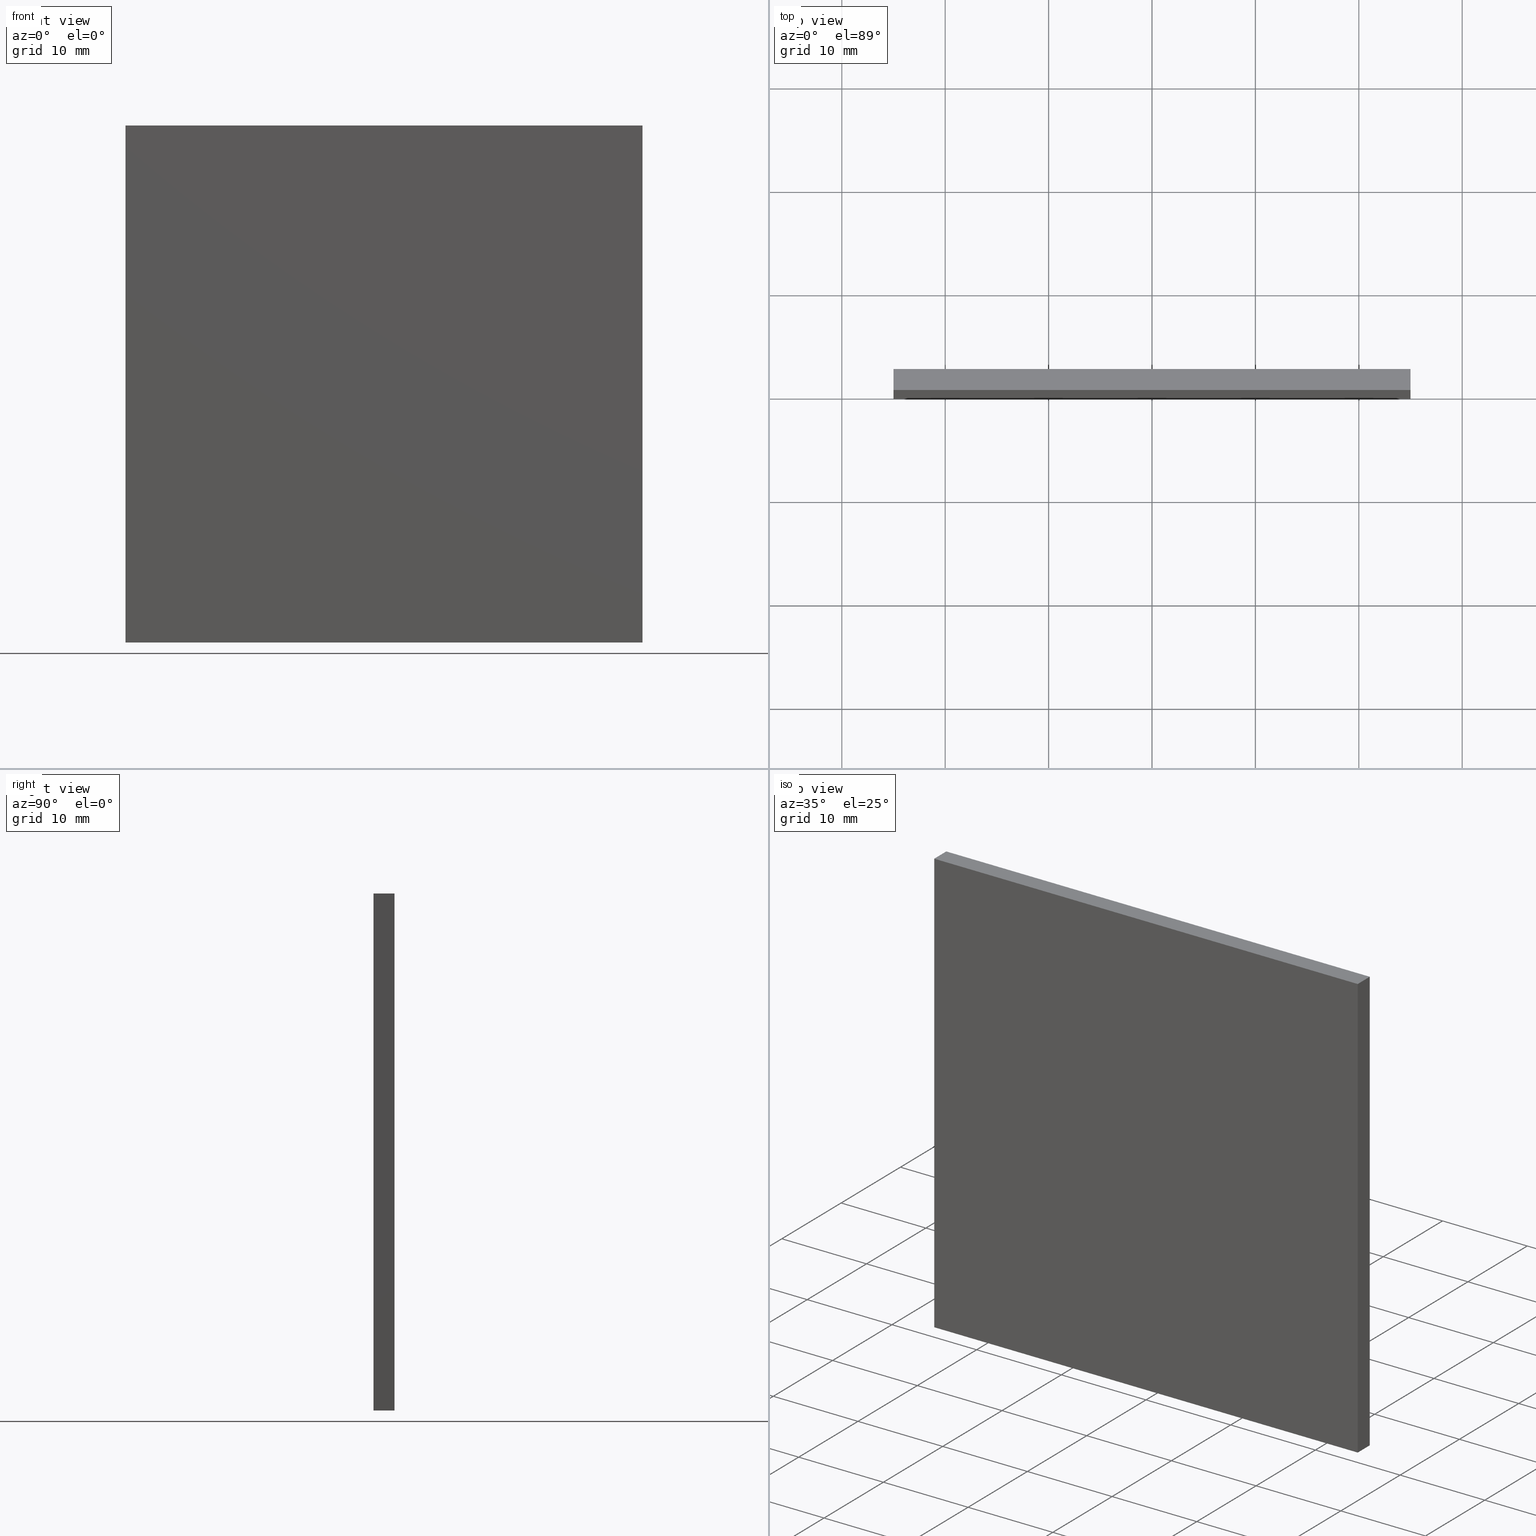
[diagram: canonical four-view strip — front | top / right | iso, engineering-drawing reading convention]
A machine part, canonical four-view strip (front | top / right | iso — engineering-drawing reading convention). The complete STEP part file that produces these views, byte-faithful:
ISO-10303-21;
HEADER;
FILE_DESCRIPTION (( 'STEP AP214' ),
    '1' );
FILE_NAME ('248617.STEP',
    '2019-08-06T06:44:41',
    ( 'user' ),
    ( '΢���й�' ),
    'SwSTEP 2.0',
    'SolidWorks 2016',
    '' );
FILE_SCHEMA (( 'AUTOMOTIVE_DESIGN' ));
ENDSEC;

DATA;
#1 = ORIENTED_EDGE ( 'NONE', *, *, #134, .F. ) ;
#2 = LINE ( 'NONE', #52, #149 ) ;
#3 = VECTOR ( 'NONE', #145, 1000.000000000000000 ) ;
#4 = CARTESIAN_POINT ( 'NONE',  ( 24.99999999999999600, 2.029999999999999800, 25.00000000000000000 ) ) ;
#5 = DIRECTION ( 'NONE',  ( -0.0000000000000000000, -0.0000000000000000000, 1.000000000000000000 ) ) ;
#6 = MECHANICAL_DESIGN_GEOMETRIC_PRESENTATION_REPRESENTATION (  '', ( #13 ), #123 ) ;
#7 = EDGE_LOOP ( 'NONE', ( #41, #33, #110, #196 ) ) ;
#8 = LINE ( 'NONE', #135, #195 ) ;
#9 = AXIS2_PLACEMENT_3D ( 'NONE', #183, #126, #177 ) ;
#10 = EDGE_CURVE ( 'NONE', #57, #164, #79, .T. ) ;
#11 = FACE_OUTER_BOUND ( 'NONE', #64, .T. ) ;
#12 = ORIENTED_EDGE ( 'NONE', *, *, #179, .F. ) ;
#13 = STYLED_ITEM ( 'NONE', ( #124 ), #85 ) ;
#14 = DIRECTION ( 'NONE',  ( -1.000000000000000000, -0.0000000000000000000, -0.0000000000000000000 ) ) ;
#15 = VECTOR ( 'NONE', #14, 1000.000000000000000 ) ;
#16 = CARTESIAN_POINT ( 'NONE',  ( -25.00000000000000400, 0.0000000000000000000, 25.00000000000000000 ) ) ;
#17 = AXIS2_PLACEMENT_3D ( 'NONE', #162, #128, #201 ) ;
#18 = VECTOR ( 'NONE', #73, 1000.000000000000000 ) ;
#19 = CARTESIAN_POINT ( 'NONE',  ( 24.99999999999999600, 2.029999999999999800, 25.00000000000000000 ) ) ;
#20 = AXIS2_PLACEMENT_3D ( 'NONE', #69, #104, #106 ) ;
#21 = ORIENTED_EDGE ( 'NONE', *, *, #179, .T. ) ;
#22 = ADVANCED_FACE ( 'NONE', ( #127 ), #191, .F. ) ;
#23 = ORIENTED_EDGE ( 'NONE', *, *, #10, .F. ) ;
#24 = CARTESIAN_POINT ( 'NONE',  ( -25.00000000000000400, 0.0000000000000000000, 25.00000000000000000 ) ) ;
#25 = UNCERTAINTY_MEASURE_WITH_UNIT (LENGTH_MEASURE( 1.000000000000000100E-005 ), #92, 'distance_accuracy_value', 'NONE');
#26 = PLANE ( 'NONE',  #17 ) ;
#27 = ORIENTED_EDGE ( 'NONE', *, *, #150, .F. ) ;
#28 = PLANE ( 'NONE',  #40 ) ;
#29 = ORIENTED_EDGE ( 'NONE', *, *, #61, .F. ) ;
#30 = EDGE_CURVE ( 'NONE', #200, #146, #111, .T. ) ;
#31 = PLANE ( 'NONE',  #112 ) ;
#32 = VECTOR ( 'NONE', #154, 1000.000000000000000 ) ;
#33 = ORIENTED_EDGE ( 'NONE', *, *, #163, .T. ) ;
#34 = APPLICATION_CONTEXT ( 'automotive_design' ) ;
#35 = LINE ( 'NONE', #161, #83 ) ;
#36 = SURFACE_STYLE_USAGE ( .BOTH. , #103 ) ;
#37 =( LENGTH_UNIT ( ) NAMED_UNIT ( * ) SI_UNIT ( .MILLI., .METRE. ) );
#38 = DIRECTION ( 'NONE',  ( 0.0000000000000000000, 0.0000000000000000000, 1.000000000000000000 ) ) ;
#39 = MECHANICAL_DESIGN_GEOMETRIC_PRESENTATION_REPRESENTATION (  '', ( #139 ), #184 ) ;
#40 = AXIS2_PLACEMENT_3D ( 'NONE', #50, #90, #157 ) ;
#41 = ORIENTED_EDGE ( 'NONE', *, *, #186, .T. ) ;
#42 = SHAPE_DEFINITION_REPRESENTATION ( #180, #85 ) ;
#43 = VECTOR ( 'NONE', #144, 1000.000000000000000 ) ;
#44 = UNCERTAINTY_MEASURE_WITH_UNIT (LENGTH_MEASURE( 1.000000000000000100E-005 ), #188, 'distance_accuracy_value', 'NONE');
#45 = ORIENTED_EDGE ( 'NONE', *, *, #165, .F. ) ;
#46 = EDGE_CURVE ( 'NONE', #146, #194, #63, .T. ) ;
#47 = PRODUCT ( '248617', '248617', '', ( #113 ) ) ;
#48 = DIRECTION ( 'NONE',  ( 1.000000000000000000, 0.0000000000000000000, -0.0000000000000000000 ) ) ;
#49 = ORIENTED_EDGE ( 'NONE', *, *, #10, .T. ) ;
#50 = CARTESIAN_POINT ( 'NONE',  ( 24.99999999999999600, 2.029999999999999800, 25.00000000000000000 ) ) ;
#51 = FACE_OUTER_BOUND ( 'NONE', #95, .T. ) ;
#52 = CARTESIAN_POINT ( 'NONE',  ( -25.00000000000000400, 2.029999999999999800, -25.00000000000000000 ) ) ;
#53 = EDGE_LOOP ( 'NONE', ( #12, #23, #143, #29 ) ) ;
#54 = CARTESIAN_POINT ( 'NONE',  ( -25.00000000000000400, 2.029999999999999800, 25.00000000000000000 ) ) ;
#55 = PRESENTATION_LAYER_ASSIGNMENT (  '', '', ( #13 ) ) ;
#56 = DIRECTION ( 'NONE',  ( -0.0000000000000000000, -0.0000000000000000000, 1.000000000000000000 ) ) ;
#57 = VERTEX_POINT ( 'NONE', #16 ) ;
#58 = ADVANCED_FACE ( 'NONE', ( #159 ), #102, .F. ) ;
#59 = DIRECTION ( 'NONE',  ( -0.0000000000000000000, -1.000000000000000000, -0.0000000000000000000 ) ) ;
#60 = CARTESIAN_POINT ( 'NONE',  ( -25.00000000000000400, 0.0000000000000000000, -25.00000000000000000 ) ) ;
#61 = EDGE_CURVE ( 'NONE', #109, #97, #66, .T. ) ;
#62 = CARTESIAN_POINT ( 'NONE',  ( 0.0000000000000000000, 2.029999999999999800, 0.0000000000000000000 ) ) ;
#63 = LINE ( 'NONE', #54, #43 ) ;
#64 = EDGE_LOOP ( 'NONE', ( #82, #27, #114, #89 ) ) ;
#65 = LINE ( 'NONE', #19, #32 ) ;
#66 = LINE ( 'NONE', #60, #15 ) ;
#67 = CARTESIAN_POINT ( 'NONE',  ( -25.00000000000000400, 2.029999999999999800, 25.00000000000000000 ) ) ;
#68 = FACE_OUTER_BOUND ( 'NONE', #77, .T. ) ;
#69 = CARTESIAN_POINT ( 'NONE',  ( -25.00000000000000400, 2.029999999999999800, 25.00000000000000000 ) ) ;
#70 = DIRECTION ( 'NONE',  ( 0.0000000000000000000, 0.0000000000000000000, -1.000000000000000000 ) ) ;
#71 =( NAMED_UNIT ( * ) SI_UNIT ( $, .STERADIAN. ) SOLID_ANGLE_UNIT ( ) );
#72 = CARTESIAN_POINT ( 'NONE',  ( -25.00000000000000400, 2.029999999999999800, 25.00000000000000000 ) ) ;
#73 = DIRECTION ( 'NONE',  ( -0.0000000000000000000, -1.000000000000000000, -0.0000000000000000000 ) ) ;
#74 = EDGE_LOOP ( 'NONE', ( #49, #193, #120, #190 ) ) ;
#75 = CARTESIAN_POINT ( 'NONE',  ( 24.99999999999999600, 0.0000000000000000000, 25.00000000000000000 ) ) ;
#76 = CLOSED_SHELL ( 'NONE', ( #189, #118, #173, #22, #58, #137 ) ) ;
#77 = EDGE_LOOP ( 'NONE', ( #131, #45, #99, #187 ) ) ;
#78 = AXIS2_PLACEMENT_3D ( 'NONE', #62, #199, #129 ) ;
#79 = LINE ( 'NONE', #24, #136 ) ;
#80 = COLOUR_RGB ( '',1.000000000000000000, 1.000000000000000000, 1.000000000000000000 ) ;
#81 = FILL_AREA_STYLE_COLOUR ( '', #80 ) ;
#82 = ORIENTED_EDGE ( 'NONE', *, *, #61, .T. ) ;
#83 = VECTOR ( 'NONE', #59, 1000.000000000000000 ) ;
#84 = CARTESIAN_POINT ( 'NONE',  ( 24.99999999999999600, 2.029999999999999800, -25.00000000000000000 ) ) ;
#85 = ADVANCED_BREP_SHAPE_REPRESENTATION ( '248617', ( #156, #151 ), #121 ) ;
#86 = CARTESIAN_POINT ( 'NONE',  ( -25.00000000000000400, 2.029999999999999800, -25.00000000000000000 ) ) ;
#87 = CARTESIAN_POINT ( 'NONE',  ( -25.00000000000000400, 0.0000000000000000000, 25.00000000000000000 ) ) ;
#88 = VECTOR ( 'NONE', #125, 1000.000000000000000 ) ;
#89 = ORIENTED_EDGE ( 'NONE', *, *, #134, .T. ) ;
#90 = DIRECTION ( 'NONE',  ( -1.000000000000000000, 0.0000000000000000000, 0.0000000000000000000 ) ) ;
#91 = APPLICATION_PROTOCOL_DEFINITION ( 'draft international standard', 'automotive_design', 1998, #108 ) ;
#92 =( LENGTH_UNIT ( ) NAMED_UNIT ( * ) SI_UNIT ( .MILLI., .METRE. ) );
#93 = EDGE_CURVE ( 'NONE', #97, #57, #101, .T. ) ;
#94 = DIRECTION ( 'NONE',  ( 0.0000000000000000000, 0.0000000000000000000, 1.000000000000000000 ) ) ;
#95 = EDGE_LOOP ( 'NONE', ( #21, #1, #115, #168 ) ) ;
#96 =( NAMED_UNIT ( * ) SI_UNIT ( $, .STERADIAN. ) SOLID_ANGLE_UNIT ( ) );
#97 = VERTEX_POINT ( 'NONE', #202 ) ;
#98 = LINE ( 'NONE', #122, #3 ) ;
#99 = ORIENTED_EDGE ( 'NONE', *, *, #30, .F. ) ;
#100 =( NAMED_UNIT ( * ) PLANE_ANGLE_UNIT ( ) SI_UNIT ( $, .RADIAN. ) );
#101 = LINE ( 'NONE', #87, #148 ) ;
#102 = PLANE ( 'NONE',  #78 ) ;
#103 = SURFACE_SIDE_STYLE ('',( #160 ) ) ;
#104 = DIRECTION ( 'NONE',  ( 1.000000000000000000, -0.0000000000000000000, 0.0000000000000000000 ) ) ;
#105 =( NAMED_UNIT ( * ) PLANE_ANGLE_UNIT ( ) SI_UNIT ( $, .RADIAN. ) );
#106 = DIRECTION ( 'NONE',  ( 0.0000000000000000000, 0.0000000000000000000, -1.000000000000000000 ) ) ;
#107 = CARTESIAN_POINT ( 'NONE',  ( 24.99999999999999600, 2.029999999999999800, -25.00000000000000000 ) ) ;
#108 = APPLICATION_CONTEXT ( 'automotive_design' ) ;
#109 = VERTEX_POINT ( 'NONE', #132 ) ;
#110 = ORIENTED_EDGE ( 'NONE', *, *, #30, .T. ) ;
#111 = LINE ( 'NONE', #67, #153 ) ;
#112 = AXIS2_PLACEMENT_3D ( 'NONE', #178, #94, #48 ) ;
#113 = PRODUCT_CONTEXT ( 'NONE', #34, 'mechanical' ) ;
#114 = ORIENTED_EDGE ( 'NONE', *, *, #163, .F. ) ;
#115 = ORIENTED_EDGE ( 'NONE', *, *, #186, .F. ) ;
#116 = SURFACE_STYLE_USAGE ( .BOTH. , #119 ) ;
#117 = LINE ( 'NONE', #142, #18 ) ;
#118 = ADVANCED_FACE ( 'NONE', ( #11 ), #31, .F. ) ;
#119 = SURFACE_SIDE_STYLE ('',( #155 ) ) ;
#120 = ORIENTED_EDGE ( 'NONE', *, *, #46, .F. ) ;
#121 =( GEOMETRIC_REPRESENTATION_CONTEXT ( 3 ) GLOBAL_UNCERTAINTY_ASSIGNED_CONTEXT ( ( #25 ) ) GLOBAL_UNIT_ASSIGNED_CONTEXT ( ( #92, #100, #96 ) ) REPRESENTATION_CONTEXT ( 'NONE', 'WORKASPACE' ) );
#122 = CARTESIAN_POINT ( 'NONE',  ( 24.99999999999999600, 0.0000000000000000000, 25.00000000000000000 ) ) ;
#123 =( GEOMETRIC_REPRESENTATION_CONTEXT ( 3 ) GLOBAL_UNCERTAINTY_ASSIGNED_CONTEXT ( ( #170 ) ) GLOBAL_UNIT_ASSIGNED_CONTEXT ( ( #37, #105, #71 ) ) REPRESENTATION_CONTEXT ( 'NONE', 'WORKASPACE' ) );
#124 = PRESENTATION_STYLE_ASSIGNMENT (( #36 ) ) ;
#125 = DIRECTION ( 'NONE',  ( -0.0000000000000000000, -1.000000000000000000, -0.0000000000000000000 ) ) ;
#126 = DIRECTION ( 'NONE',  ( 0.0000000000000000000, 0.0000000000000000000, -1.000000000000000000 ) ) ;
#127 = FACE_OUTER_BOUND ( 'NONE', #74, .T. ) ;
#128 = DIRECTION ( 'NONE',  ( 0.0000000000000000000, -1.000000000000000000, 0.0000000000000000000 ) ) ;
#129 = DIRECTION ( 'NONE',  ( 0.0000000000000000000, -0.0000000000000000000, -1.000000000000000000 ) ) ;
#130 = PRESENTATION_STYLE_ASSIGNMENT (( #116 ) ) ;
#131 = ORIENTED_EDGE ( 'NONE', *, *, #93, .T. ) ;
#132 = CARTESIAN_POINT ( 'NONE',  ( 24.99999999999999600, 0.0000000000000000000, -25.00000000000000000 ) ) ;
#133 =( NAMED_UNIT ( * ) SI_UNIT ( $, .STERADIAN. ) SOLID_ANGLE_UNIT ( ) );
#134 = EDGE_CURVE ( 'NONE', #152, #109, #158, .T. ) ;
#135 = CARTESIAN_POINT ( 'NONE',  ( 24.99999999999999600, 2.029999999999999800, 25.00000000000000000 ) ) ;
#136 = VECTOR ( 'NONE', #167, 1000.000000000000000 ) ;
#137 = ADVANCED_FACE ( 'NONE', ( #182 ), #26, .T. ) ;
#138 = COLOUR_RGB ( '',1.000000000000000000, 1.000000000000000000, 1.000000000000000000 ) ;
#139 = STYLED_ITEM ( 'NONE', ( #130 ), #156 ) ;
#140 = PLANE ( 'NONE',  #20 ) ;
#141 = EDGE_CURVE ( 'NONE', #194, #164, #65, .T. ) ;
#142 = CARTESIAN_POINT ( 'NONE',  ( -25.00000000000000400, 2.029999999999999800, -25.00000000000000000 ) ) ;
#143 = ORIENTED_EDGE ( 'NONE', *, *, #93, .F. ) ;
#144 = DIRECTION ( 'NONE',  ( 1.000000000000000000, 0.0000000000000000000, 0.0000000000000000000 ) ) ;
#145 = DIRECTION ( 'NONE',  ( 0.0000000000000000000, 0.0000000000000000000, -1.000000000000000000 ) ) ;
#146 = VERTEX_POINT ( 'NONE', #72 ) ;
#147 = APPLICATION_PROTOCOL_DEFINITION ( 'draft international standard', 'automotive_design', 1998, #34 ) ;
#148 = VECTOR ( 'NONE', #56, 1000.000000000000000 ) ;
#149 = VECTOR ( 'NONE', #192, 1000.000000000000000 ) ;
#150 = EDGE_CURVE ( 'NONE', #200, #97, #117, .T. ) ;
#151 = AXIS2_PLACEMENT_3D ( 'NONE', #169, #38, #176 ) ;
#152 = VERTEX_POINT ( 'NONE', #107 ) ;
#153 = VECTOR ( 'NONE', #5, 1000.000000000000000 ) ;
#154 = DIRECTION ( 'NONE',  ( -0.0000000000000000000, -1.000000000000000000, -0.0000000000000000000 ) ) ;
#155 = SURFACE_STYLE_FILL_AREA ( #171 ) ;
#156 = MANIFOLD_SOLID_BREP ( '͹̨-����1', #76 ) ;
#157 = DIRECTION ( 'NONE',  ( 0.0000000000000000000, 0.0000000000000000000, 1.000000000000000000 ) ) ;
#158 = LINE ( 'NONE', #84, #88 ) ;
#159 = FACE_OUTER_BOUND ( 'NONE', #7, .T. ) ;
#160 = SURFACE_STYLE_FILL_AREA ( #198 ) ;
#161 = CARTESIAN_POINT ( 'NONE',  ( -25.00000000000000400, 2.029999999999999800, 25.00000000000000000 ) ) ;
#162 = CARTESIAN_POINT ( 'NONE',  ( 0.0000000000000000000, 0.0000000000000000000, 0.0000000000000000000 ) ) ;
#163 = EDGE_CURVE ( 'NONE', #152, #200, #2, .T. ) ;
#164 = VERTEX_POINT ( 'NONE', #75 ) ;
#165 = EDGE_CURVE ( 'NONE', #146, #57, #35, .T. ) ;
#166 = PRODUCT_DEFINITION ( 'δ֪', '', #172, #175 ) ;
#167 = DIRECTION ( 'NONE',  ( 1.000000000000000000, 0.0000000000000000000, 0.0000000000000000000 ) ) ;
#168 = ORIENTED_EDGE ( 'NONE', *, *, #141, .T. ) ;
#169 = CARTESIAN_POINT ( 'NONE',  ( 0.0000000000000000000, 0.0000000000000000000, 0.0000000000000000000 ) ) ;
#170 = UNCERTAINTY_MEASURE_WITH_UNIT (LENGTH_MEASURE( 1.000000000000000100E-005 ), #37, 'distance_accuracy_value', 'NONE');
#171 = FILL_AREA_STYLE ('',( #185 ) ) ;
#172 = PRODUCT_DEFINITION_FORMATION_WITH_SPECIFIED_SOURCE ( '�κ�', '', #47, .NOT_KNOWN. ) ;
#173 = ADVANCED_FACE ( 'NONE', ( #68 ), #140, .F. ) ;
#174 =( NAMED_UNIT ( * ) PLANE_ANGLE_UNIT ( ) SI_UNIT ( $, .RADIAN. ) );
#175 = PRODUCT_DEFINITION_CONTEXT ( 'detailed design', #108, 'design' ) ;
#176 = DIRECTION ( 'NONE',  ( 1.000000000000000000, 0.0000000000000000000, 0.0000000000000000000 ) ) ;
#177 = DIRECTION ( 'NONE',  ( -1.000000000000000000, 0.0000000000000000000, -0.0000000000000000000 ) ) ;
#178 = CARTESIAN_POINT ( 'NONE',  ( -25.00000000000000400, 2.029999999999999800, -25.00000000000000000 ) ) ;
#179 = EDGE_CURVE ( 'NONE', #164, #109, #98, .T. ) ;
#180 = PRODUCT_DEFINITION_SHAPE ( 'NONE', 'NONE',  #166 ) ;
#181 = PRODUCT_RELATED_PRODUCT_CATEGORY ( 'part', '', ( #47 ) ) ;
#182 = FACE_OUTER_BOUND ( 'NONE', #53, .T. ) ;
#183 = CARTESIAN_POINT ( 'NONE',  ( -25.00000000000000400, 2.029999999999999800, 25.00000000000000000 ) ) ;
#184 =( GEOMETRIC_REPRESENTATION_CONTEXT ( 3 ) GLOBAL_UNCERTAINTY_ASSIGNED_CONTEXT ( ( #44 ) ) GLOBAL_UNIT_ASSIGNED_CONTEXT ( ( #188, #174, #133 ) ) REPRESENTATION_CONTEXT ( 'NONE', 'WORKASPACE' ) );
#185 = FILL_AREA_STYLE_COLOUR ( '', #138 ) ;
#186 = EDGE_CURVE ( 'NONE', #194, #152, #8, .T. ) ;
#187 = ORIENTED_EDGE ( 'NONE', *, *, #150, .T. ) ;
#188 =( LENGTH_UNIT ( ) NAMED_UNIT ( * ) SI_UNIT ( .MILLI., .METRE. ) );
#189 = ADVANCED_FACE ( 'NONE', ( #51 ), #28, .F. ) ;
#190 = ORIENTED_EDGE ( 'NONE', *, *, #165, .T. ) ;
#191 = PLANE ( 'NONE',  #9 ) ;
#192 = DIRECTION ( 'NONE',  ( -1.000000000000000000, -0.0000000000000000000, -0.0000000000000000000 ) ) ;
#193 = ORIENTED_EDGE ( 'NONE', *, *, #141, .F. ) ;
#194 = VERTEX_POINT ( 'NONE', #4 ) ;
#195 = VECTOR ( 'NONE', #70, 1000.000000000000000 ) ;
#196 = ORIENTED_EDGE ( 'NONE', *, *, #46, .T. ) ;
#197 = PRESENTATION_LAYER_ASSIGNMENT (  '', '', ( #139 ) ) ;
#198 = FILL_AREA_STYLE ('',( #81 ) ) ;
#199 = DIRECTION ( 'NONE',  ( 0.0000000000000000000, -1.000000000000000000, 0.0000000000000000000 ) ) ;
#200 = VERTEX_POINT ( 'NONE', #86 ) ;
#201 = DIRECTION ( 'NONE',  ( 0.0000000000000000000, -0.0000000000000000000, -1.000000000000000000 ) ) ;
#202 = CARTESIAN_POINT ( 'NONE',  ( -25.00000000000000400, 0.0000000000000000000, -25.00000000000000000 ) ) ;
ENDSEC;
END-ISO-10303-21;
